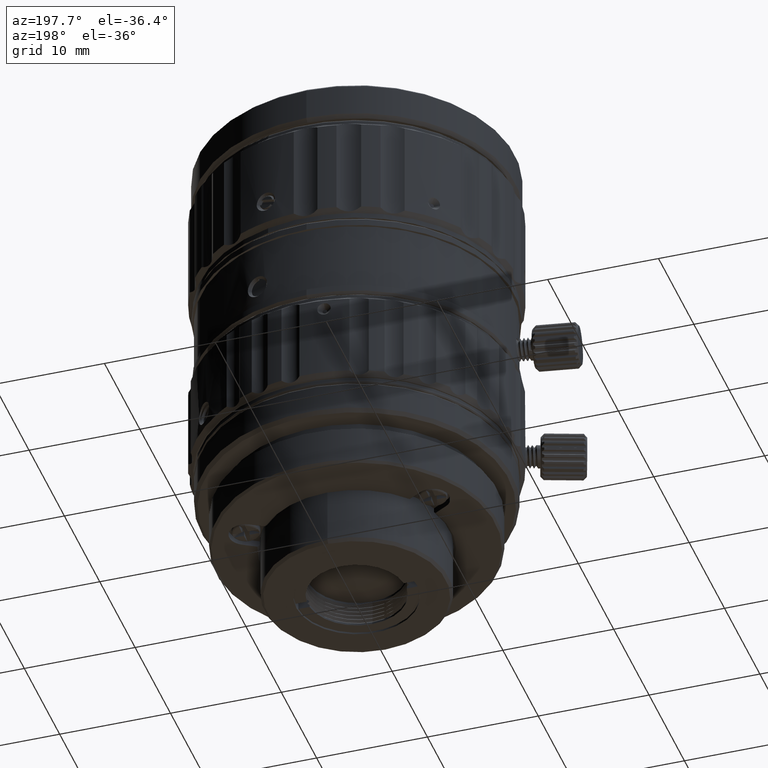
[diagram: clean part render]
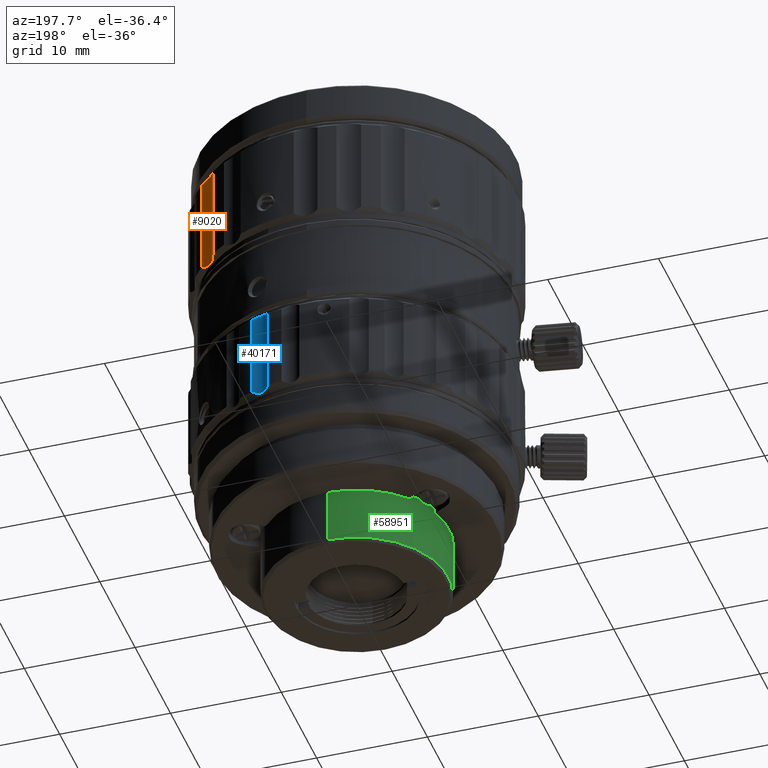
[diagram: same view with three faces highlighted in distinct colors, each labeled with its STEP entity id]
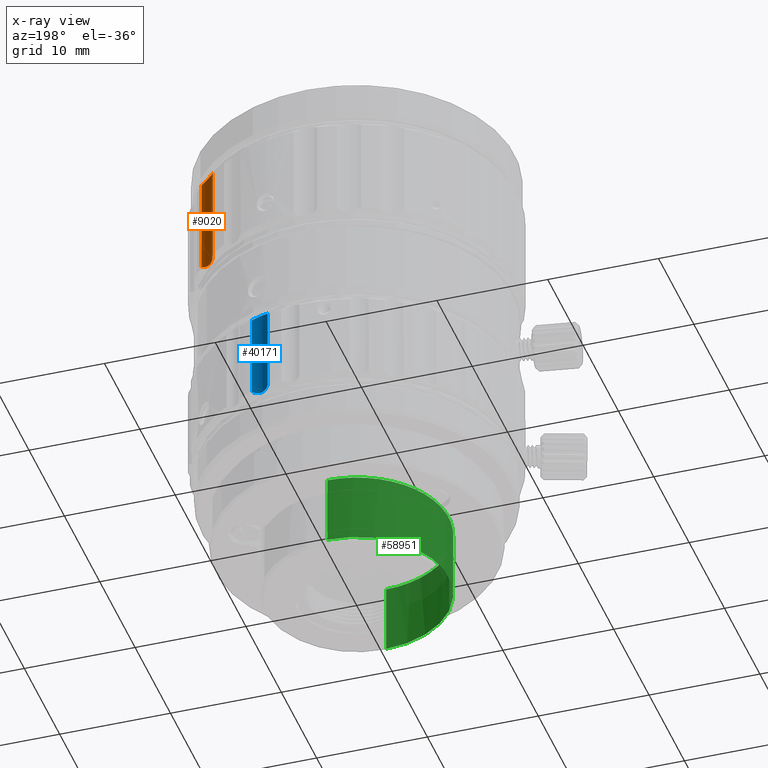
[diagram: x-ray of the same camera — body ghosted, the three highlighted faces saturated]
A machine part, auxiliary view with three faces highlighted in distinct colors.
The next image is the same camera in x-ray (body ghosted, the three faces saturated) — at least one of them is partly hidden behind the body in this view.
Their STEP definitions:

[orange] entity #9020 — the highlighted cylindrical surface (edge-blend (fillet) strip) has radius 2.3 mm, axis along (0, 0, -1).
#1161 = CARTESIAN_POINT ( 'NONE',  ( 9.809356568270919396, 10.30756004736280040, 33.42119170414199658 ) ) ;
#2231 = DIRECTION ( 'NONE',  ( 0.000000000000000000, 0.000000000000000000, -1.000000000000000000 ) ) ;
#3182 = B_SPLINE_CURVE_WITH_KNOTS ( 'NONE', 3,
 ( #67290, #46829, #15239, #66952, #40918, #61407, #10016, #19395, #67998, #35026, #66599, #4103, #61749, #41268, #8620 ),
 .UNSPECIFIED., .F., .F.,
 ( 4, 1, 1, 1, 1, 1, 1, 1, 1, 1, 1, 1, 4 ),
 ( 0.000000000000000000, 0.08333333333333001192, 0.1666666666667000196, 0.2500000000000000000, 0.3333333333333000081, 0.4166666666666999919, 0.5000000000000000000, 0.5833333333333000637, 0.6666666666667000474, 0.7500000000000000000, 0.8333333333333000637, 0.9166666666667000474, 1.000000000000000000 ),
 .UNSPECIFIED. ) ;
#4103 = CARTESIAN_POINT ( 'NONE',  ( 9.618134962138789490, 10.61715791478069981, 24.22558372789770331 ) ) ;
#6071 = CARTESIAN_POINT ( 'NONE',  ( 10.30724807149650069, 9.809585898840520457, 33.42125945709500456 ) ) ;
#6115 = ORIENTED_EDGE ( 'NONE', *, *, #27382, .F. ) ;
#6396 = CARTESIAN_POINT ( 'NONE',  ( 9.919735081567511159, 10.16842019698669830, 33.44480357325500108 ) ) ;
#7096 = CARTESIAN_POINT ( 'NONE',  ( 9.618128853269830358, 10.61717077281829980, 33.32441078600000139 ) ) ;
#8082 = LINE ( 'NONE', #44213, #8259 ) ;
#8259 = VECTOR ( 'NONE', #19195, 1000.000000000000000 ) ;
#8559 = VERTEX_POINT ( 'NONE', #18219 ) ;
#8620 = CARTESIAN_POINT ( 'NONE',  ( 9.473041189809761065, 10.97777257080140068, 24.40000000000000213 ) ) ;
#9020 = ADVANCED_FACE ( 'NONE', ( #18240 ), #38751, .F. ) ;
#10016 = CARTESIAN_POINT ( 'NONE',  ( 10.16832180516939843, 9.919816021679839224, 24.10518206920659878 ) ) ;
#10543 = VERTEX_POINT ( 'NONE', #23635 ) ;
#14553 = ORIENTED_EDGE ( 'NONE', *, *, #52292, .T. ) ;
#15239 = CARTESIAN_POINT ( 'NONE',  ( 10.78957612532060040, 9.538364412241989498, 24.30087549107430078 ) ) ;
#16326 = EDGE_CURVE ( 'NONE', #58855, #8559, #42771, .T. ) ;
#16387 = DIRECTION ( 'NONE',  ( 1.228143576114180143E-14, -5.726927548558760398E-15, -1.000000000000000000 ) ) ;
#17519 = CARTESIAN_POINT ( 'NONE',  ( 9.473041189810670559, 10.97777257080100100, 33.14999999999999858 ) ) ;
#18219 = CARTESIAN_POINT ( 'NONE',  ( 9.473041189809761065, 10.97777257080140068, 24.40000000000000213 ) ) ;
#18240 = FACE_OUTER_BOUND ( 'NONE', #57929, .T. ) ;
#18915 = DIRECTION ( 'NONE',  ( -0.7071067811865389130, 0.7071067811865562325, 0.000000000000000000 ) ) ;
#19195 = DIRECTION ( 'NONE',  ( -1.453533221168739859E-14, 6.777936724136520393E-15, -1.000000000000000000 ) ) ;
#19395 = CARTESIAN_POINT ( 'NONE',  ( 10.03918424744820115, 10.03949222422489918, 24.09740609096829544 ) ) ;
#19561 = AXIS2_PLACEMENT_3D ( 'NONE', #28659, #2231, #18915 ) ;
#22385 = CARTESIAN_POINT ( 'NONE',  ( 9.538373483536670250, 10.78956433110599988, 33.24912680342600169 ) ) ;
#22724 = CARTESIAN_POINT ( 'NONE',  ( 10.16832025434909959, 9.919815985329030639, 33.44481923625300368 ) ) ;
#23635 = CARTESIAN_POINT ( 'NONE',  ( 10.97777257080000091, 9.473041189810190943, 24.40000000000000213 ) ) ;
#27382 = EDGE_CURVE ( 'NONE', #40681, #58855, #68103, .T. ) ;
#28154 = CARTESIAN_POINT ( 'NONE',  ( 10.97777257080000091, 9.473041189810190943, 33.14999999999999858 ) ) ;
#28659 = CARTESIAN_POINT ( 'NONE',  ( 11.66726188957500021, 11.66726188957130006, 24.00000000000000000 ) ) ;
#30930 = EDGE_CURVE ( 'NONE', #10543, #8559, #3182, .T. ) ;
#32820 = CARTESIAN_POINT ( 'NONE',  ( 10.45647448296729998, 9.708939441294509365, 33.38146501852300219 ) ) ;
#35026 = CARTESIAN_POINT ( 'NONE',  ( 9.809398746822829196, 10.30750301123550017, 24.12879610979339873 ) ) ;
#37496 = CARTESIAN_POINT ( 'NONE',  ( 9.473041189810670559, 10.97777257080100100, 33.14999999999999858 ) ) ;
#38751 = CYLINDRICAL_SURFACE ( 'NONE', #19561, 2.299999999999999378 ) ;
#40681 = VERTEX_POINT ( 'NONE', #28154 ) ;
#40875 = VECTOR ( 'NONE', #16387, 1000.000000000000000 ) ;
#40918 = CARTESIAN_POINT ( 'NONE',  ( 10.45645819540649946, 9.708949080967428813, 24.16852955389819968 ) ) ;
#41268 = CARTESIAN_POINT ( 'NONE',  ( 9.493165829762379104, 10.91372821163869844, 24.36466049199810158 ) ) ;
#42771 = LINE ( 'NONE', #64265, #40875 ) ;
#43901 = CARTESIAN_POINT ( 'NONE',  ( 9.708907342777930438, 10.45653473584299853, 33.38144198585800382 ) ) ;
#44213 = CARTESIAN_POINT ( 'NONE',  ( 10.97777257080000091, 9.473041189810190943, 33.14999999999999858 ) ) ;
#46829 = CARTESIAN_POINT ( 'NONE',  ( 10.91373301403449858, 9.493164320708679327, 24.36466314194559857 ) ) ;
#49108 = CARTESIAN_POINT ( 'NONE',  ( 10.91372951093259935, 9.493165421487979927, 33.18533879105800111 ) ) ;
#52292 = EDGE_CURVE ( 'NONE', #40681, #10543, #8082, .T. ) ;
#53969 = CARTESIAN_POINT ( 'NONE',  ( 10.97777257080000091, 9.473041189810190943, 33.14999999999999858 ) ) ;
#54989 = CARTESIAN_POINT ( 'NONE',  ( 10.03913651180789834, 10.03953950774599946, 33.45259428071800301 ) ) ;
#56044 = ORIENTED_EDGE ( 'NONE', *, *, #30930, .T. ) ;
#57929 = EDGE_LOOP ( 'NONE', ( #56044, #64380, #6115, #14553 ) ) ;
#58855 = VERTEX_POINT ( 'NONE', #37496 ) ;
#59177 = CARTESIAN_POINT ( 'NONE',  ( 10.61701101021969862, 9.618211461915530336, 33.32447361021999654 ) ) ;
#61407 = CARTESIAN_POINT ( 'NONE',  ( 10.30725285015570059, 9.809582678887359464, 24.12874181407540064 ) ) ;
#61749 = CARTESIAN_POINT ( 'NONE',  ( 9.538371361470451504, 10.78956863378769881, 24.30087497281220266 ) ) ;
#64265 = CARTESIAN_POINT ( 'NONE',  ( 9.473041189809761065, 10.97777257080140068, 33.14999999999999858 ) ) ;
#64380 = ORIENTED_EDGE ( 'NONE', *, *, #16326, .F. ) ;
#65058 = CARTESIAN_POINT ( 'NONE',  ( 9.493166717055341763, 10.91372538793329916, 33.18534106611600265 ) ) ;
#65399 = CARTESIAN_POINT ( 'NONE',  ( 10.78956924587780009, 9.538366473658859590, 33.24912839951200283 ) ) ;
#66599 = CARTESIAN_POINT ( 'NONE',  ( 9.708924122045939242, 10.45650550688189817, 24.16854783822259733 ) ) ;
#66952 = CARTESIAN_POINT ( 'NONE',  ( 10.61703606797600052, 9.618197941436518406, 24.22553579592660000 ) ) ;
#67290 = CARTESIAN_POINT ( 'NONE',  ( 10.97777257080000091, 9.473041189810190943, 24.40000000000000213 ) ) ;
#67998 = CARTESIAN_POINT ( 'NONE',  ( 9.919754903817969094, 10.16839694472589883, 24.10519360628220298 ) ) ;
#68103 = B_SPLINE_CURVE_WITH_KNOTS ( 'NONE', 3,
 ( #53969, #49108, #65399, #59177, #32820, #6071, #22724, #54989, #6396, #1161, #43901, #7096, #22385, #65058, #17519 ),
 .UNSPECIFIED., .F., .F.,
 ( 4, 1, 1, 1, 1, 1, 1, 1, 1, 1, 1, 1, 4 ),
 ( 0.000000000000000000, 0.08333333333333001192, 0.1666666666667000196, 0.2500000000000000000, 0.3333333333333000081, 0.4166666666666999919, 0.5000000000000000000, 0.5833333333333000637, 0.6666666666667000474, 0.7500000000000000000, 0.8333333333333000637, 0.9166666666667000474, 1.000000000000000000 ),
 .UNSPECIFIED. ) ;

[blue] entity #40171 — the highlighted cylindrical surface (edge-blend (fillet) strip) has radius 1.5 mm, axis along (0, 0, -1).
#2337 = CARTESIAN_POINT ( 'NONE',  ( 4.096788995156639857, 13.63093655750409994, 14.81691672164000018 ) ) ;
#2550 = CARTESIAN_POINT ( 'NONE',  ( 3.759119471399799739, 13.84558257172260021, 6.746628713167999614 ) ) ;
#4816 = AXIS2_PLACEMENT_3D ( 'NONE', #32446, #43186, #21676 ) ;
#7786 = CARTESIAN_POINT ( 'NONE',  ( 3.980704164790200394, 13.69084525511829931, 6.657622453207999946 ) ) ;
#8291 = CARTESIAN_POINT ( 'NONE',  ( 3.555983506294990271, 14.05720389348029897, 6.899999999999999467 ) ) ;
#10532 = ORIENTED_EDGE ( 'NONE', *, *, #55995, .T. ) ;
#11429 = B_SPLINE_CURVE_WITH_KNOTS ( 'NONE', 3,
 ( #29110, #33984, #49590, #50286, #50623, #17665, #2337, #65550, #66571, #38510, #55467, #61022, #33295, #29448, #13457, #18684 ),
 .UNSPECIFIED., .F., .F.,
 ( 4, 1, 1, 1, 1, 1, 1, 1, 1, 1, 1, 1, 1, 4 ),
 ( 0.000000000000000000, 0.07692307692307999434, 0.1538461538461999845, 0.2307692307692000011, 0.3076923076922999933, 0.3846153846154000133, 0.4615384615385000333, 0.5384615384614999112, 0.6153846153845999867, 0.6923076923076999512, 0.7692307692308000266, 0.8461538461537999600, 0.9230769230769000355, 1.000000000000000000 ),
 .UNSPECIFIED. ) ;
#12982 = CARTESIAN_POINT ( 'NONE',  ( 4.462457488828289520, 13.51563686608449899, 6.633078159695999787 ) ) ;
#13457 = CARTESIAN_POINT ( 'NONE',  ( 5.101022639609070097, 13.54024385960580013, 14.58082650274999992 ) ) ;
#13688 = ORIENTED_EDGE ( 'NONE', *, *, #62068, .T. ) ;
#13833 = CARTESIAN_POINT ( 'NONE',  ( 3.555983506299110086, 14.05720389348210020, -1.169203622808370243E-11 ) ) ;
#17635 = B_SPLINE_CURVE_WITH_KNOTS ( 'NONE', 3,
 ( #65412, #22735, #18207, #54664, #64734, #39392, #12982, #34184, #39726, #55336, #7786, #50143, #2550, #43572, #23750, #49458 ),
 .UNSPECIFIED., .F., .F.,
 ( 4, 1, 1, 1, 1, 1, 1, 1, 1, 1, 1, 1, 1, 4 ),
 ( 0.000000000000000000, 0.07692307692307999434, 0.1538461538461999845, 0.2307692307692000011, 0.3076923076922999933, 0.3846153846154000133, 0.4615384615385000333, 0.5384615384614999112, 0.6153846153845999867, 0.6923076923076999512, 0.7692307692308000266, 0.8461538461537999600, 0.9230769230769000355, 1.000000000000000000 ),
 .UNSPECIFIED. ) ;
#17665 = CARTESIAN_POINT ( 'NONE',  ( 3.980774151602399336, 13.69080258901709968, 14.79239920226000038 ) ) ;
#18207 = CARTESIAN_POINT ( 'NONE',  ( 5.003614923075199172, 13.51711084908430038, 6.813298827586000250 ) ) ;
#18684 = CARTESIAN_POINT ( 'NONE',  ( 5.149989755639830413, 13.55461565359770049, 14.55000000000000071 ) ) ;
#21346 = EDGE_CURVE ( 'NONE', #36365, #51433, #31182, .T. ) ;
#21676 = DIRECTION ( 'NONE',  ( -0.9681476403780923112, 0.2503800040545012262, 0.000000000000000000 ) ) ;
#22562 = CARTESIAN_POINT ( 'NONE',  ( 3.555983506294990271, 14.05720389348029897, 14.55000000000000071 ) ) ;
#22735 = CARTESIAN_POINT ( 'NONE',  ( 5.101031531242080419, 13.54024646929080156, 6.869179094847000400 ) ) ;
#23750 = CARTESIAN_POINT ( 'NONE',  ( 3.587850436359200312, 14.01734640201809867, 6.869174716796999647 ) ) ;
#27225 = FACE_OUTER_BOUND ( 'NONE', #60889, .T. ) ;
#28197 = VERTEX_POINT ( 'NONE', #22562 ) ;
#29110 = CARTESIAN_POINT ( 'NONE',  ( 3.555983506294990271, 14.05720389348029897, 14.55000000000000071 ) ) ;
#29448 = CARTESIAN_POINT ( 'NONE',  ( 5.003594826886930136, 13.51710782602039984, 14.63671093041999960 ) ) ;
#29780 = CARTESIAN_POINT ( 'NONE',  ( 5.149989755639830413, 13.55461565359770049, 14.55000000000000071 ) ) ;
#31182 = LINE ( 'NONE', #41232, #35440 ) ;
#32446 = CARTESIAN_POINT ( 'NONE',  ( 4.727560008905268951, 14.99390475210300089, 6.500000000000000000 ) ) ;
#33112 = CYLINDRICAL_SURFACE ( 'NONE', #4816, 1.500000000000000000 ) ;
#33295 = CARTESIAN_POINT ( 'NONE',  ( 4.862206042443739662, 13.49777941960410033, 14.70337263951000040 ) ) ;
#33984 = CARTESIAN_POINT ( 'NONE',  ( 3.587845863259930379, 14.01735212181820067, 14.58082085958000107 ) ) ;
#34184 = CARTESIAN_POINT ( 'NONE',  ( 4.337427763268809855, 13.54364481055619862, 6.621045703442999475 ) ) ;
#34680 = LINE ( 'NONE', #13833, #56783 ) ;
#34825 = EDGE_CURVE ( 'NONE', #62799, #28197, #34680, .T. ) ;
#35440 = VECTOR ( 'NONE', #53025, 1000.000000000000000 ) ;
#36365 = VERTEX_POINT ( 'NONE', #57847 ) ;
#38510 = CARTESIAN_POINT ( 'NONE',  ( 4.462604622328160353, 13.51561209513629969, 14.81689906139999913 ) ) ;
#39392 = CARTESIAN_POINT ( 'NONE',  ( 4.591851282271290025, 13.49812750160610086, 6.657597426279000530 ) ) ;
#39726 = CARTESIAN_POINT ( 'NONE',  ( 4.215125537798879662, 13.58221433145410018, 6.621053907340000322 ) ) ;
#40171 = ADVANCED_FACE ( 'NONE', ( #27225 ), #33112, .F. ) ;
#41232 = CARTESIAN_POINT ( 'NONE',  ( 5.149989755641279920, 13.55461565359900078, -1.682508299349910371E-11 ) ) ;
#43186 = DIRECTION ( 'NONE',  ( 0.000000000000000000, 0.000000000000000000, -1.000000000000000000 ) ) ;
#43328 = ORIENTED_EDGE ( 'NONE', *, *, #34825, .T. ) ;
#43572 = CARTESIAN_POINT ( 'NONE',  ( 3.654386041633050031, 13.94251430037889961, 6.813291751903999938 ) ) ;
#45354 = ORIENTED_EDGE ( 'NONE', *, *, #21346, .F. ) ;
#46120 = DIRECTION ( 'NONE',  ( 0.000000000000000000, 0.000000000000000000, 1.000000000000000000 ) ) ;
#49458 = CARTESIAN_POINT ( 'NONE',  ( 3.555983506294990271, 14.05720389348029897, 6.899999999999999467 ) ) ;
#49590 = CARTESIAN_POINT ( 'NONE',  ( 3.654374740132050103, 13.94252437612439977, 14.63670144563000086 ) ) ;
#50143 = CARTESIAN_POINT ( 'NONE',  ( 3.868399599531699984, 13.76186645817930021, 6.695036000667999865 ) ) ;
#50286 = CARTESIAN_POINT ( 'NONE',  ( 3.759147208761429937, 13.84555782323059958, 14.70338799426000165 ) ) ;
#50623 = CARTESIAN_POINT ( 'NONE',  ( 3.868433721298929928, 13.76184243524040163, 14.75497791553999960 ) ) ;
#51433 = VERTEX_POINT ( 'NONE', #29780 ) ;
#53025 = DIRECTION ( 'NONE',  ( 0.000000000000000000, 0.000000000000000000, 1.000000000000000000 ) ) ;
#54664 = CARTESIAN_POINT ( 'NONE',  ( 4.862183320860619773, 13.49777637003000130, 6.746616703929000813 ) ) ;
#55336 = CARTESIAN_POINT ( 'NONE',  ( 4.096645404690249848, 13.63100432483970081, 6.633106978587000491 ) ) ;
#55467 = CARTESIAN_POINT ( 'NONE',  ( 4.591919296802169370, 13.49812343849129981, 14.79238430200000032 ) ) ;
#55995 = EDGE_CURVE ( 'NONE', #28197, #51433, #11429, .T. ) ;
#56783 = VECTOR ( 'NONE', #46120, 1000.000000000000000 ) ;
#57847 = CARTESIAN_POINT ( 'NONE',  ( 5.149989755639129640, 13.55461565359840037, 6.899999999999999467 ) ) ;
#60889 = EDGE_LOOP ( 'NONE', ( #13688, #43328, #10532, #45354 ) ) ;
#61022 = CARTESIAN_POINT ( 'NONE',  ( 4.724670825049400058, 13.49188360166060185, 14.75496564880999806 ) ) ;
#62068 = EDGE_CURVE ( 'NONE', #36365, #62799, #17635, .T. ) ;
#62799 = VERTEX_POINT ( 'NONE', #8291 ) ;
#64734 = CARTESIAN_POINT ( 'NONE',  ( 4.724638352218410553, 13.49188342587240008, 6.695023426532999089 ) ) ;
#65412 = CARTESIAN_POINT ( 'NONE',  ( 5.149989755639129640, 13.55461565359840037, 6.899999999999999467 ) ) ;
#65550 = CARTESIAN_POINT ( 'NONE',  ( 4.215275107019979650, 13.58216034237979919, 14.82895329704999909 ) ) ;
#66571 = CARTESIAN_POINT ( 'NONE',  ( 4.337584706247519684, 13.54360233784159995, 14.82894690109000102 ) ) ;

[green] entity #58951 — the highlighted cylindrical surface (partial cylindrical patch) has radius 8.3 mm, axis along (0, 0, -1).
#1271 = ORIENTED_EDGE ( 'NONE', *, *, #4715, .T. ) ;
#1995 = DIRECTION ( 'NONE',  ( 0.000000000000000000, -1.000000000000000000, 0.000000000000000000 ) ) ;
#4715 = EDGE_CURVE ( 'NONE', #47416, #19349, #15476, .T. ) ;
#5385 = VERTEX_POINT ( 'NONE', #7414 ) ;
#7414 = CARTESIAN_POINT ( 'NONE',  ( 0.000000000000000000, 8.299999999775637960, -6.350000019045999977 ) ) ;
#7627 = AXIS2_PLACEMENT_3D ( 'NONE', #23883, #65544, #1995 ) ;
#12110 = AXIS2_PLACEMENT_3D ( 'NONE', #62508, #13888, #36128 ) ;
#13888 = DIRECTION ( 'NONE',  ( 0.000000000000000000, 0.000000000000000000, -1.000000000000000000 ) ) ;
#14254 = CARTESIAN_POINT ( 'NONE',  ( 0.000000000000000000, -8.300000000000000711, 26.31749999999999901 ) ) ;
#14321 = CIRCLE ( 'NONE', #56422, 8.300000000000000711 ) ;
#15476 = CIRCLE ( 'NONE', #12110, 8.300000000000000711 ) ;
#18001 = VECTOR ( 'NONE', #51000, 1000.000000000000000 ) ;
#19349 = VERTEX_POINT ( 'NONE', #26943 ) ;
#20106 = LINE ( 'NONE', #55846, #18001 ) ;
#23294 = ORIENTED_EDGE ( 'NONE', *, *, #30045, .F. ) ;
#23883 = CARTESIAN_POINT ( 'NONE',  ( 0.000000000000000000, 0.000000000000000000, 26.31749999999999901 ) ) ;
#26943 = CARTESIAN_POINT ( 'NONE',  ( -1.016456843292303031E-15, 8.300000000000000711, 0.000000000000000000 ) ) ;
#29485 = CARTESIAN_POINT ( 'NONE',  ( 0.000000000000000000, 0.000000000000000000, -6.350000019045999977 ) ) ;
#30045 = EDGE_CURVE ( 'NONE', #47416, #31808, #66674, .T. ) ;
#30963 = CARTESIAN_POINT ( 'NONE',  ( -1.016456843264826809E-15, -8.299999999775639736, -6.350000019045999977 ) ) ;
#31808 = VERTEX_POINT ( 'NONE', #30963 ) ;
#35276 = ORIENTED_EDGE ( 'NONE', *, *, #38686, .T. ) ;
#35738 = VECTOR ( 'NONE', #62168, 1000.000000000000000 ) ;
#36128 = DIRECTION ( 'NONE',  ( -1.000000000000000000, 0.000000000000000000, 0.000000000000000000 ) ) ;
#38686 = EDGE_CURVE ( 'NONE', #19349, #5385, #20106, .T. ) ;
#47416 = VERTEX_POINT ( 'NONE', #59822 ) ;
#50660 = DIRECTION ( 'NONE',  ( 0.000000000000000000, 0.000000000000000000, 1.000000000000000000 ) ) ;
#51000 = DIRECTION ( 'NONE',  ( 0.000000000000000000, 0.000000000000000000, -1.000000000000000000 ) ) ;
#51093 = ORIENTED_EDGE ( 'NONE', *, *, #62806, .T. ) ;
#55846 = CARTESIAN_POINT ( 'NONE',  ( -1.016456843292303031E-15, 8.300000000000000711, 26.31749999999999901 ) ) ;
#56422 = AXIS2_PLACEMENT_3D ( 'NONE', #29485, #50660, #66608 ) ;
#58951 = ADVANCED_FACE ( 'NONE', ( #65195 ), #66220, .T. ) ;
#59822 = CARTESIAN_POINT ( 'NONE',  ( 0.000000000000000000, -8.300000000000000711, 0.000000000000000000 ) ) ;
#62168 = DIRECTION ( 'NONE',  ( 0.000000000000000000, 0.000000000000000000, -1.000000000000000000 ) ) ;
#62508 = CARTESIAN_POINT ( 'NONE',  ( 0.000000000000000000, 0.000000000000000000, 0.000000000000000000 ) ) ;
#62806 = EDGE_CURVE ( 'NONE', #5385, #31808, #14321, .T. ) ;
#65195 = FACE_OUTER_BOUND ( 'NONE', #65406, .T. ) ;
#65406 = EDGE_LOOP ( 'NONE', ( #1271, #35276, #51093, #23294 ) ) ;
#65544 = DIRECTION ( 'NONE',  ( 0.000000000000000000, 0.000000000000000000, -1.000000000000000000 ) ) ;
#66220 = CYLINDRICAL_SURFACE ( 'NONE', #7627, 8.300000000000000711 ) ;
#66608 = DIRECTION ( 'NONE',  ( 0.000000000000000000, -1.000000000000000000, 0.000000000000000000 ) ) ;
#66674 = LINE ( 'NONE', #14254, #35738 ) ;